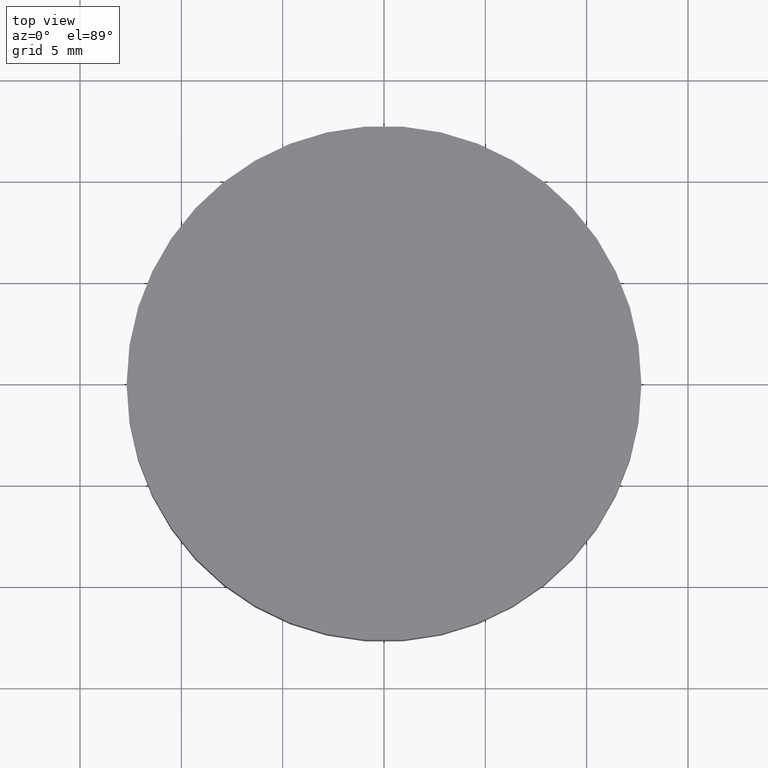
[diagram: clean part render]
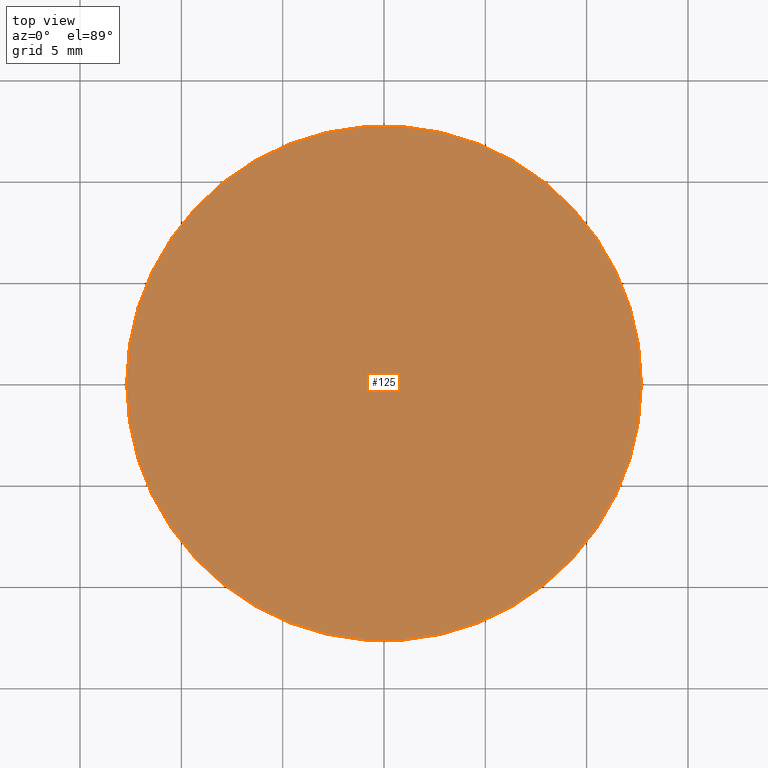
[diagram: same view with one face highlighted and labeled with its STEP entity id]
A machine part, top view. The second image highlights one B-rep face of the part: STEP entity #125.
In plain terms, the highlighted planar face has unit normal (0, 0, 1).
Its self-contained STEP definition (entity closure, byte-faithful):
#1 = EDGE_CURVE ( 'NONE', #91, #73, #121, .T. ) ;
#7 = DIRECTION ( 'NONE',  ( 0.0000000000000000000, 0.0000000000000000000, 1.000000000000000000 ) ) ;
#8 = CARTESIAN_POINT ( 'NONE',  ( -12.69999999999999900, 0.0000000000000000000, 4.000000000000000000 ) ) ;
#18 = EDGE_CURVE ( 'NONE', #73, #91, #132, .T. ) ;
#32 = DIRECTION ( 'NONE',  ( 1.000000000000000000, 0.0000000000000000000, 0.0000000000000000000 ) ) ;
#36 = AXIS2_PLACEMENT_3D ( 'NONE', #92, #68, #139 ) ;
#41 = CARTESIAN_POINT ( 'NONE',  ( 12.69999999999999900, 1.555301434917138400E-015, 4.000000000000000000 ) ) ;
#64 = ORIENTED_EDGE ( 'NONE', *, *, #1, .T. ) ;
#67 = ORIENTED_EDGE ( 'NONE', *, *, #18, .T. ) ;
#68 = DIRECTION ( 'NONE',  ( 0.0000000000000000000, 0.0000000000000000000, 1.000000000000000000 ) ) ;
#73 = VERTEX_POINT ( 'NONE', #41 ) ;
#78 = DIRECTION ( 'NONE',  ( 0.0000000000000000000, 0.0000000000000000000, 1.000000000000000000 ) ) ;
#87 = AXIS2_PLACEMENT_3D ( 'NONE', #126, #7, #111 ) ;
#91 = VERTEX_POINT ( 'NONE', #8 ) ;
#92 = CARTESIAN_POINT ( 'NONE',  ( 0.0000000000000000000, 0.0000000000000000000, 4.000000000000000000 ) ) ;
#100 = CARTESIAN_POINT ( 'NONE',  ( 0.0000000000000000000, 0.0000000000000000000, 4.000000000000000000 ) ) ;
#103 = EDGE_LOOP ( 'NONE', ( #64, #67 ) ) ;
#108 = FACE_OUTER_BOUND ( 'NONE', #103, .T. ) ;
#109 = AXIS2_PLACEMENT_3D ( 'NONE', #100, #78, #32 ) ;
#111 = DIRECTION ( 'NONE',  ( 1.000000000000000000, 0.0000000000000000000, 0.0000000000000000000 ) ) ;
#121 = CIRCLE ( 'NONE', #109, 12.69999999999999900 ) ;
#125 = ADVANCED_FACE ( 'NONE', ( #108 ), #128, .T. ) ;
#126 = CARTESIAN_POINT ( 'NONE',  ( 0.0000000000000000000, 0.0000000000000000000, 4.000000000000000000 ) ) ;
#128 = PLANE ( 'NONE',  #36 ) ;
#132 = CIRCLE ( 'NONE', #87, 12.69999999999999900 ) ;
#139 = DIRECTION ( 'NONE',  ( 1.000000000000000000, 0.0000000000000000000, -0.0000000000000000000 ) ) ;